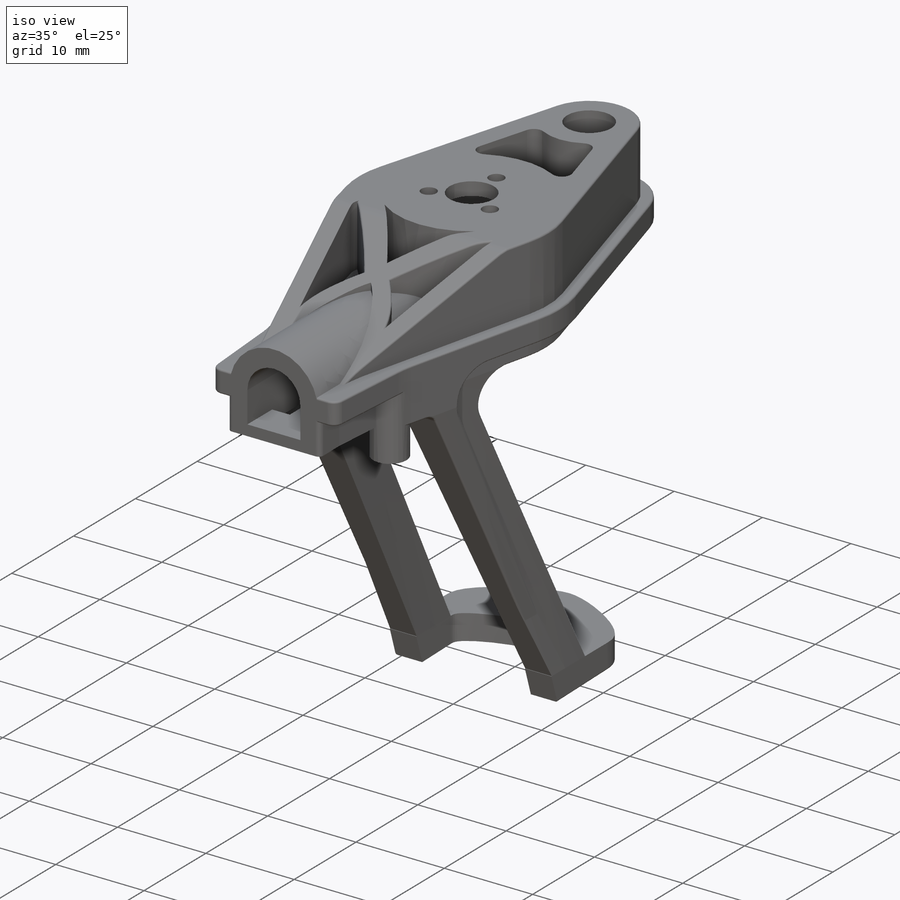
[diagram: iso view]
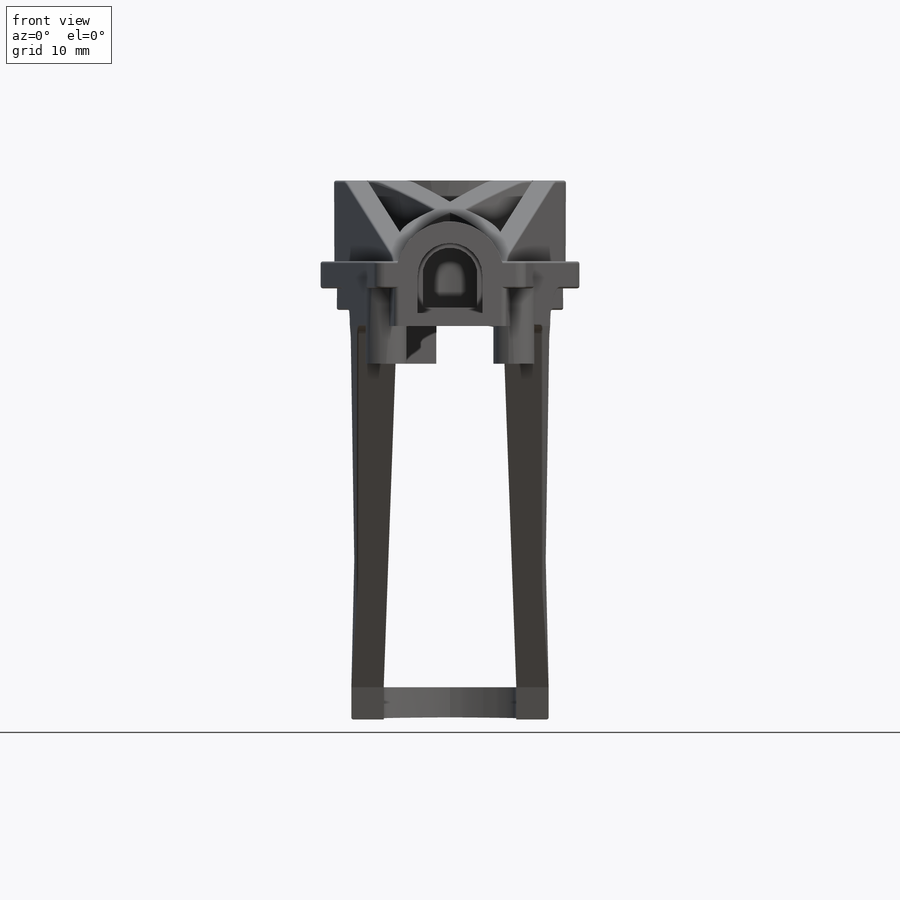
[diagram: front view]
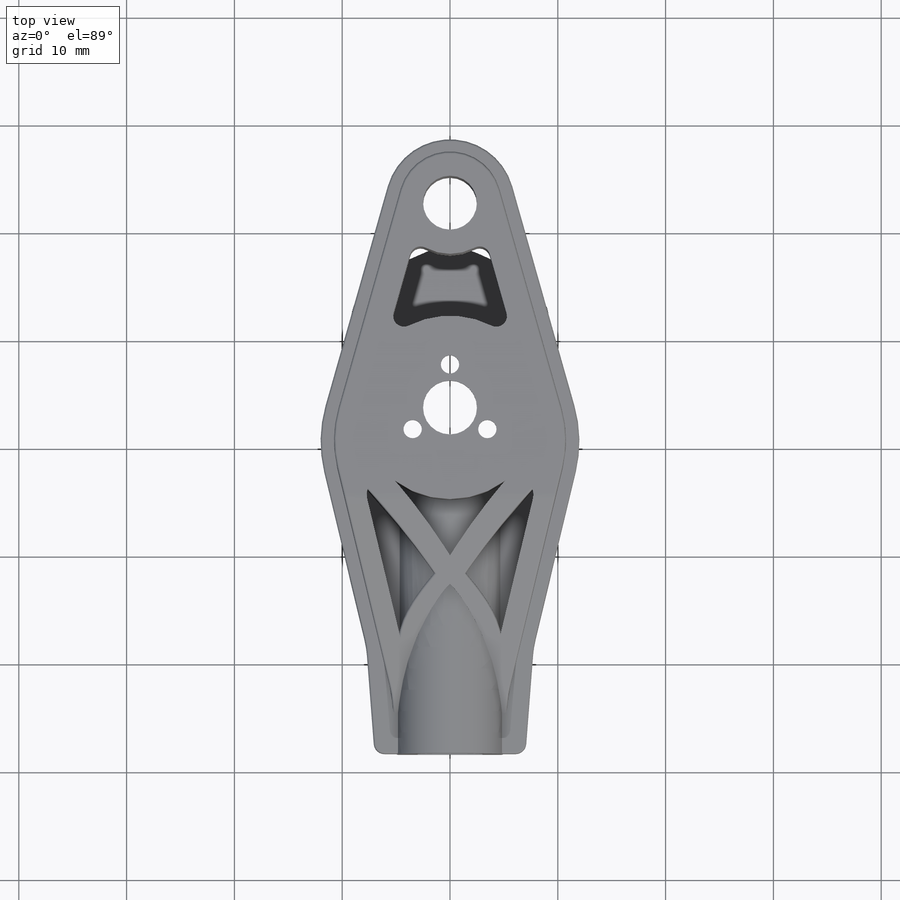
[diagram: top view]
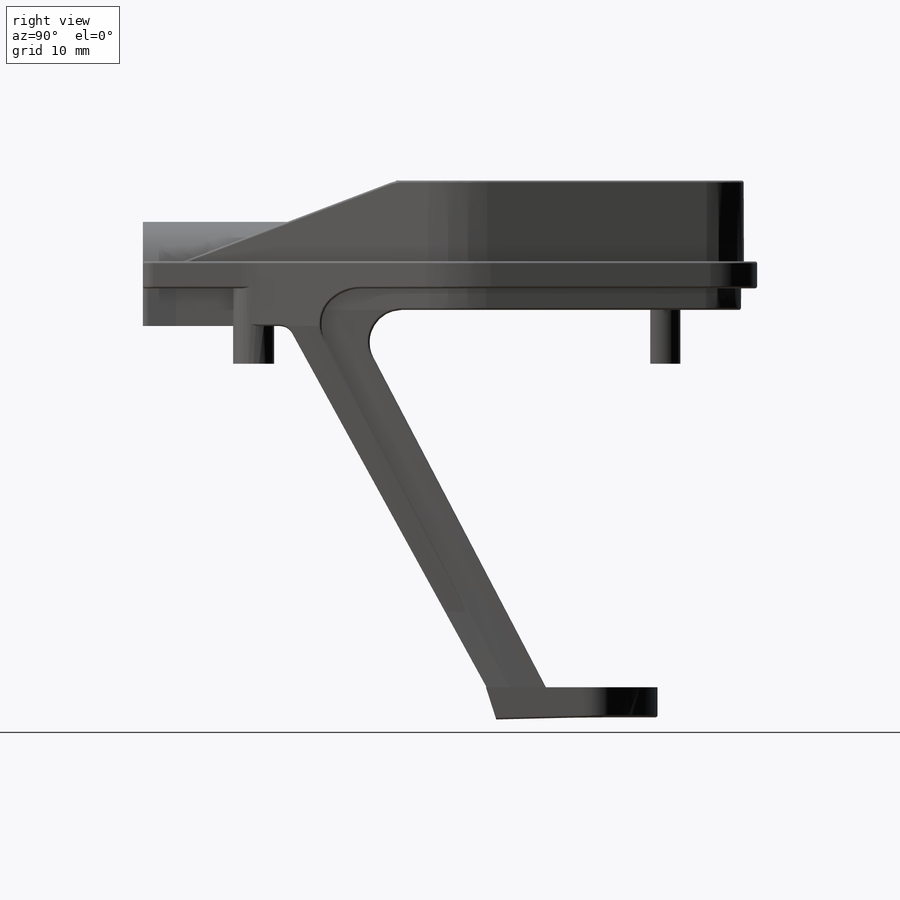
[diagram: right view]
SOLIDWORKS PART (.sldprt)
format: sldprt  version: not decoded by parser v0  size: 1,302,016 bytes
history: native  units: mm
features: sketch x29, extrude x11, cut_extrude x10, plane x6, fillet x4, thread x3, material x1, pattern_circular x1, mirror x1, hole x1 (+13 scaffold rows collapsed)
feature tree (80):
  scaffold x13  (default folders/planes/origin — collapsed)
  material  "Matériau <non spécifié>"
  plane  "Plan de face"
  plane  "Plan de dessus"
  plane  "Plan de droite"
  sketch  "Esquisse1"  dims[c1.D1=24.0mm c1.D2=12.0mm c2.D1=12.0mm c2.D7=10.0mm c2.D9=1.0mm c2.D3=7.0mm c2.D4=51.0mm c2.D5=22.0mm c2.D6=10.0mm c2.D8=~9.174312mm c3.D8=94.4deg]
  extrude  "Extrusion1"  Depth=2.5mm
  sketch  "Esquisse2"  dims[c1.D1=21.5mm c1.D2=10.0mm c1.D4=9.0mm c1.D3=1.0mm c1.D5=2.0mm c2.D3=1.5mm]
  extrude  "Extrusion2"  Depth=7.5mm
  sketch  "Esquisse3"  dims[D1=23.5mm]
  cut_extrude  "Extrusion3"  [1 undecoded]
  sketch  "Esquisse13"  dims[c1.D1=~21.171674mm c2.D1=~179.945825deg c3.D1=1.5mm c3.D2=~10.560629mm c4.D2=~179.830944deg c5.D2=~10.26076mm c6.D2=~179.830944deg c6.D1=1.5mm c7.D2=1.5mm]
  extrude  "Extrusion12"  Depth=2mm
  sketch  "Esquisse4"  dims[c1.D1=5.0mm c1.D2=9.5mm c1.D5=2.5mm c1.D6=8.5mm c1.D7=1.0mm c1.D8=15.0mm c1.D9=17.5mm c1.D3=~10.296287mm c2.D3=1.0027deg c3.D3=2.5mm c3.D4=19.0mm c3.D9=2.0mm c3.D10=4.0042mm]
  cut_extrude  "Extrusion4"  [1 undecoded]
  sketch  "Esquisse7"  dims[D1=17.0mm D2=2.0mm]
  cut_extrude  "Extrusion7"  Depth=7mm
  sketch  "Esquisse8"  dims[D1=10.0mm D2=1.2mm]
  extrude  "Extrusion8"  Depth=27mm
  sketch  "Esquisse14"  dims[c1.D1=10.0mm c1.D3=0.5mm c2.D1=10.0mm c2.D4=1.9mm c2.D2=2.0mm c2.D5=~5.923986mm]
  extrude  "Extrusion13"  Depth=3.5mm
  plane  "Plan1"  Offset=37mm
  sketch  "Esquisse17"  dims[D1=5.5mm D2=3.0mm D3=9.15mm]
  sketch  "Esquisse18"  dims[c1.D1=4.2mm c1.D2=6.6mm c2.D1=4.2mm c2.D3=4.2mm c3.D1=~6.417173mm c4.D1=~1.005644deg c5.D1=3.0mm c5.D3=2.0mm]
  sketch  "Esquisse19"
  plane  "Plan4"  Offset=30mm
  sketch  "Esquisse20"  dims[D1=~2.146458mm]
  extrude  "Lissage3"  [1 undecoded]
  fillet  "Congé2"  Radius=4mm
  sketch  "Esquisse21"  dims[D1=7.3mm D2=2.8mm D3=7.3mm]
  sketch  "Esquisse22"
  plane  "Plan6"
  sketch  "Esquisse24"
  extrude  "Extrusion16"  Depth=3mm
  sketch  "Esquisse25"
  cut_extrude  "Extrusion17"  Depth=3mm
  sketch  "Esquisse26"
  extrude  "Lissage6"  [1 undecoded]
  sketch  "Esquisse28"
  extrude  "Extrusion19"  [1 undecoded]
  fillet  "Congé6"  Radius=3mm
  sketch  "Esquisse29"  dims[D1=12.2mm]
  cut_extrude  "Extrusion20"  Depth=10.5mm
  fillet  "Congé8"  Radius=1.3mm
  sketch  "Esquisse30"
  extrude  "Extrusion21"  Depth=3.5mm
  sketch  "Esquisse31"  dims[D1=3.0mm D2=3.5mm]
  cut_extrude  "Extrusion22"  Depth=18mm
  sketch  "Esquisse32"  dims[D1=2.0mm D2=4.0mm D3=7.0mm D4=1.0mm]
  cut_extrude  "Extrusion23"  [1 undecoded]
  sketch  "Esquisse33"  dims[D1=1.7mm D2=7.0mm]
  cut_extrude  "Extrusion24"  [1 undecoded]
  pattern_circular  "Répétition circulaire1"  Count=2 Angle=120deg
  fillet  "Congé12"  Radius=0.2mm
  sketch  "Esquisse35"
  sketch  "Esquisse37"  dims[D1=~3.517219mm D2=0.5mm D3=0.5mm]
  cut_extrude  "Extrusion30"  [1 undecoded]
  sketch  "Esquisse38"
  cut_extrude  "Extrusion31"  Depth=2.5mm
  mirror  "Symétrie5"
  sketch  "Esquisse39"  dims[D1=4.0mm D2=0.8mm]
  extrude  "Extrusion32"  Depth=5mm
  hole  "Trou taraudé M1.61"  Diameter=1.25mm Depth=6.95mm
  sketch  "Esquisse3D1"
  sketch  "Esquisse42"  dims[hole-wizard template sketch: 46 standard entries collapsed; hole parameters kept: c15.Diamètre du trou pour taraudage=1.25mm c15.Profondeur du trou pour taraudage=6.95mm c15.D3=~14.816244mm c15.Angle de pointe=118.0deg]
  thread  "Filetage de perçage1"  Diameter=5.2mm  [1 undecoded]
  thread  "Filetage de perçage2"  Diameter=5.2mm  [1 undecoded]
  thread  "Filetage de perçage3"  Diameter=5.2mm  [1 undecoded]
decode coverage: 41 of 60 modeling features carry decoded parameters
note: ~ marks probable driven/reference dimensions
note: 11 parameter values undecoded
summary: no parameter record found for 8 features
note: suppression state not decoded; provenance and decode notes live in map.json
